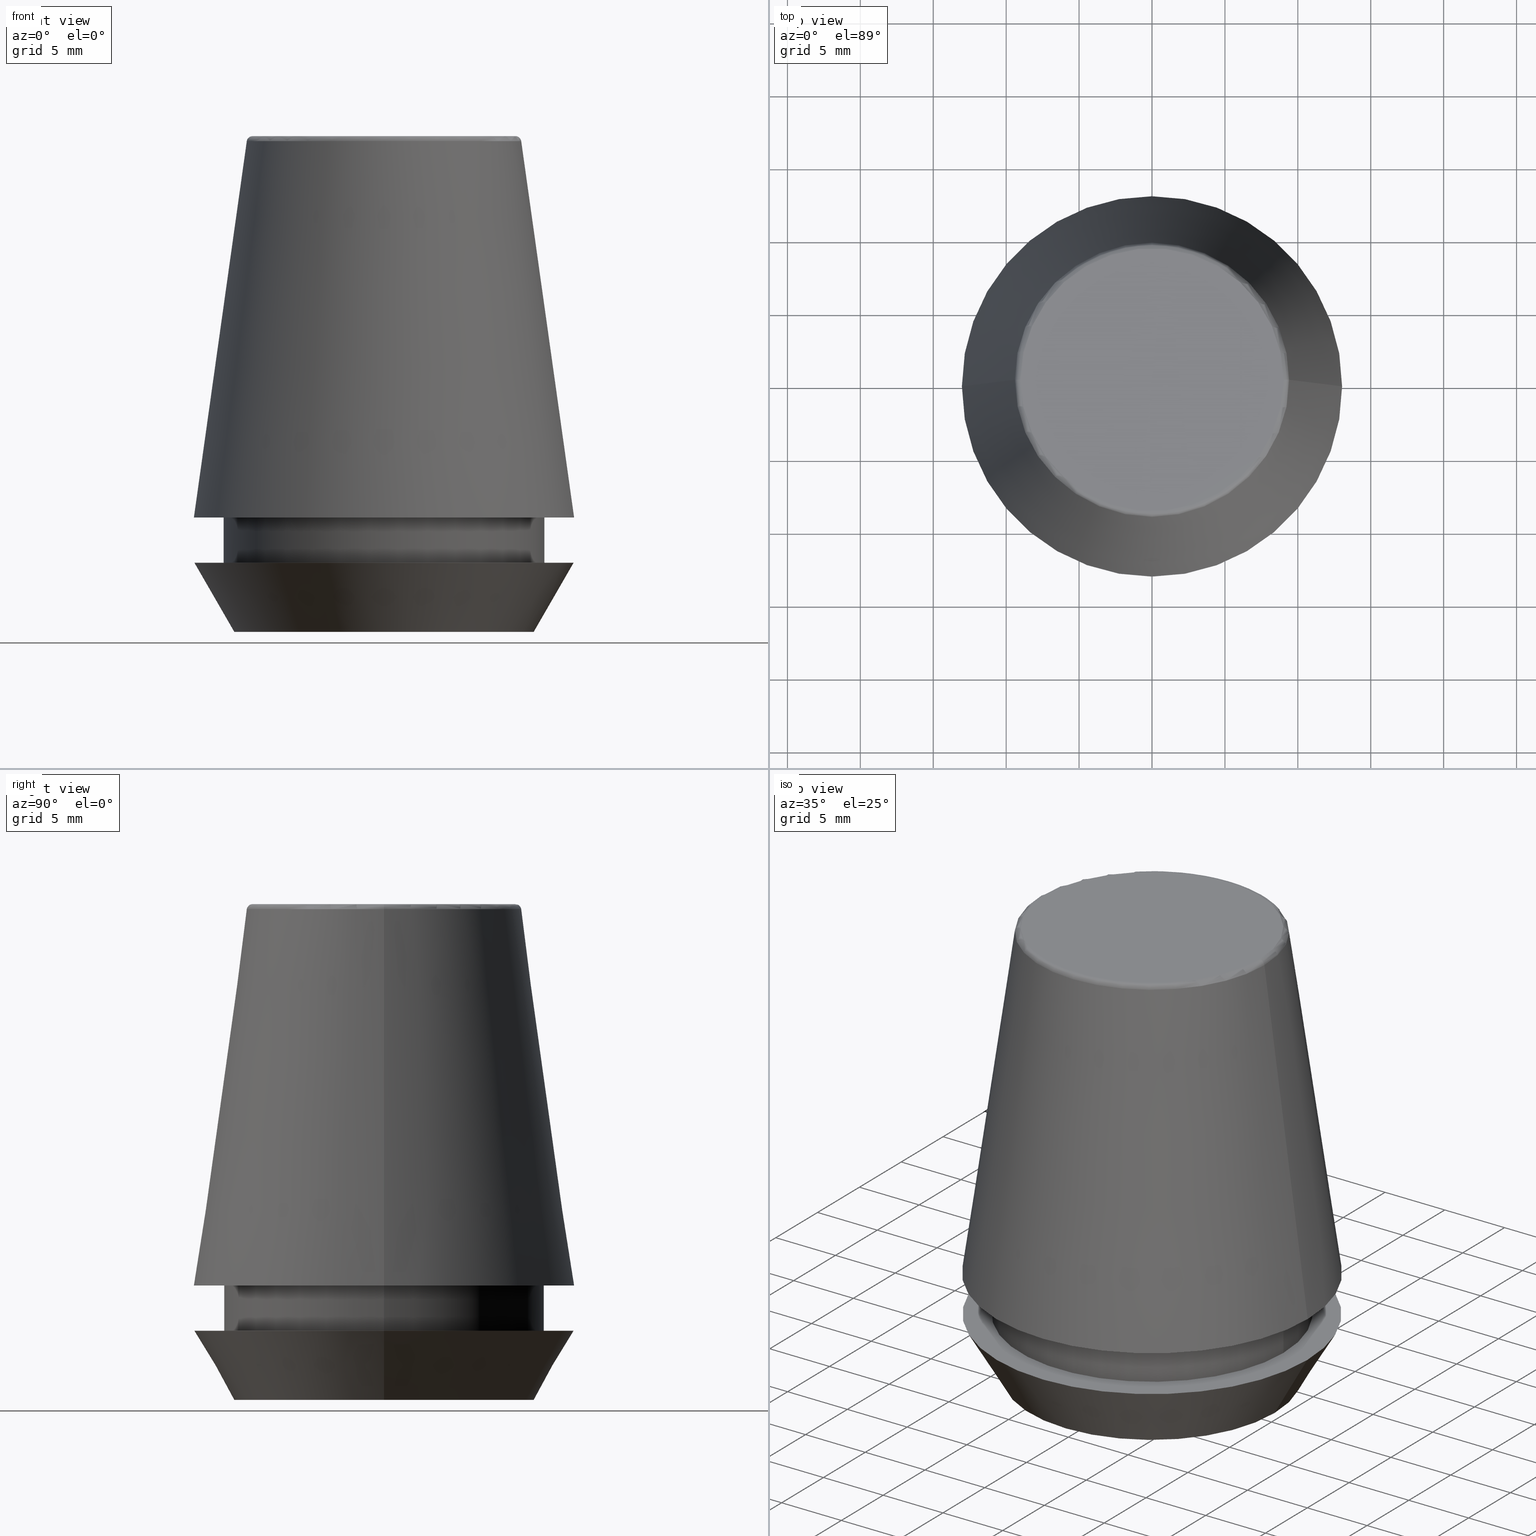
[diagram: canonical four-view strip — front | top / right | iso, engineering-drawing reading convention]
A machine part, canonical four-view strip (front | top / right | iso — engineering-drawing reading convention). The complete STEP part file that produces these views, byte-faithful:
ISO-10303-21;
HEADER;
FILE_DESCRIPTION (( 'STEP AP203' ),
    '1' );
FILE_NAME ('TAP COLLET ER 25G  16.0  X 12.0.STEP',
    '2019-04-09T10:24:27',
    ( '' ),
    ( '' ),
    'SwSTEP 2.0',
    'SolidWorks 2014',
    '' );
FILE_SCHEMA (( 'CONFIG_CONTROL_DESIGN' ));
ENDSEC;

DATA;
#1 = DIRECTION ( 'NONE',  ( 0.0000000000000000000, -0.0000000000000000000, 1.000000000000000000 ) ) ;
#2 = CONICAL_SURFACE ( 'NONE', #323, 10.26217568973925200, 0.5235987755982940400 ) ;
#3 = CC_DESIGN_PERSON_AND_ORGANIZATION_ASSIGNMENT ( #376, #169, ( #78 ) ) ;
#4 = DIRECTION ( 'NONE',  ( 1.000000000000000000, 0.0000000000000000000, 0.0000000000000000000 ) ) ;
#5 = CARTESIAN_POINT ( 'NONE',  ( 0.0000000000000000000, 13.00000000000000000, 4.742050807568884500 ) ) ;
#6 = ORIENTED_EDGE ( 'NONE', *, *, #59, .T. ) ;
#7 = DIRECTION ( 'NONE',  ( -0.0000000000000000000, -0.0000000000000000000, 1.000000000000000000 ) ) ;
#8 = APPROVAL ( #88, 'UNSPECIFIED' ) ;
#9 = CARTESIAN_POINT ( 'NONE',  ( 0.0000000000000000000, 0.0000000000000000000, 33.60000000000000100 ) ) ;
#10 = DIRECTION ( 'NONE',  ( -0.0000000000000000000, -0.0000000000000000000, 1.000000000000000000 ) ) ;
#11 = DIRECTION ( 'NONE',  ( -0.0000000000000000000, -0.0000000000000000000, 1.000000000000000000 ) ) ;
#12 = CLOSED_SHELL ( 'NONE', ( #89, #22, #229, #141, #383, #314, #199, #114, #279, #315, #155, #83 ) ) ;
#13 = VERTEX_POINT ( 'NONE', #373 ) ;
#14 = ORIENTED_EDGE ( 'NONE', *, *, #316, .F. ) ;
#15 = DIRECTION ( 'NONE',  ( 1.000000000000000000, 0.0000000000000000000, 0.0000000000000000000 ) ) ;
#16 = ORIENTED_EDGE ( 'NONE', *, *, #334, .F. ) ;
#17 = ORIENTED_EDGE ( 'NONE', *, *, #288, .T. ) ;
#18 = PERSON_AND_ORGANIZATION_ROLE ( 'design_supplier' ) ;
#19 = FACE_OUTER_BOUND ( 'NONE', #151, .T. ) ;
#20 = DATE_AND_TIME ( #106, #180 ) ;
#21 = DIRECTION ( 'NONE',  ( -0.4999999999999957800, 6.123233995736714300E-017, 0.8660254037844410400 ) ) ;
#22 = ADVANCED_FACE ( 'NONE', ( #19 ), #231, .T. ) ;
#23 = AXIS2_PLACEMENT_3D ( 'NONE', #212, #127, #326 ) ;
#24 = CARTESIAN_POINT ( 'NONE',  ( -11.00000000000000000, 1.347111479062088400E-015, 101.8074564848000400 ) ) ;
#25 = ORGANIZATION ( 'UNSPECIFIED', 'UNSPECIFIED', '' ) ;
#26 = UNCERTAINTY_MEASURE_WITH_UNIT (LENGTH_MEASURE( 1.000000000000000100E-005 ), #273, 'distance_accuracy_value', 'NONE');
#27 = ORIENTED_EDGE ( 'NONE', *, *, #366, .F. ) ;
#28 = ORIENTED_EDGE ( 'NONE', *, *, #64, .T. ) ;
#29 = CIRCLE ( 'NONE', #175, 10.26217568973925200 ) ;
#30 = CC_DESIGN_APPROVAL ( #44, ( #49 ) ) ;
#31 = PLANE ( 'NONE',  #191 ) ;
#32 = PERSON_AND_ORGANIZATION ( #146, #25 ) ;
#33 = AXIS2_PLACEMENT_3D ( 'NONE', #82, #11, #371 ) ;
#34 = DIRECTION ( 'NONE',  ( 1.000000000000000000, 0.0000000000000000000, 0.0000000000000000000 ) ) ;
#35 = FACE_OUTER_BOUND ( 'NONE', #255, .T. ) ;
#36 = DIRECTION ( 'NONE',  ( -1.000000000000000000, 0.0000000000000000000, -0.0000000000000000000 ) ) ;
#37 = CARTESIAN_POINT ( 'NONE',  ( -9.012603057622234500, 1.127980121063915600E-015, 34.00000000000000000 ) ) ;
#38 = DIRECTION ( 'NONE',  ( -0.0000000000000000000, -0.0000000000000000000, 1.000000000000000000 ) ) ;
#39 = EDGE_CURVE ( 'NONE', #247, #370, #96, .T. ) ;
#40 = PERSON_AND_ORGANIZATION ( #146, #25 ) ;
#41 = DIRECTION ( 'NONE',  ( 1.000000000000000000, 0.0000000000000000000, 0.0000000000000000000 ) ) ;
#42 = DIRECTION ( 'NONE',  ( 1.000000000000000000, 0.0000000000000000000, 0.0000000000000000000 ) ) ;
#43 = CONICAL_SURFACE ( 'NONE', #270, 10.26217568973925200, 0.5235987755982940400 ) ;
#44 = APPROVAL ( #341, 'UNSPECIFIED' ) ;
#45 = CARTESIAN_POINT ( 'NONE',  ( 0.0000000000000000000, 0.0000000000000000000, 4.742050807568884500 ) ) ;
#46 = ORIENTED_EDGE ( 'NONE', *, *, #272, .T. ) ;
#47 = CARTESIAN_POINT ( 'NONE',  ( -11.00000000000000000, 1.347111479062088400E-015, 7.842050807568890400 ) ) ;
#48 = MECHANICAL_CONTEXT ( 'NONE', #339, 'mechanical' ) ;
#49 = PRODUCT_DEFINITION_FORMATION_WITH_SPECIFIED_SOURCE ( 'ANY', '', #119, .NOT_KNOWN. ) ;
#50 = PERSON_AND_ORGANIZATION_ROLE ( 'classification_officer' ) ;
#51 = CALENDAR_DATE ( 2019, 9, 4 ) ;
#52 = PRODUCT_RELATED_PRODUCT_CATEGORY ( 'detail', '', ( #119 ) ) ;
#53 = ORIENTED_EDGE ( 'NONE', *, *, #357, .F. ) ;
#54 = CC_DESIGN_DATE_AND_TIME_ASSIGNMENT ( #61, #137, ( #78 ) ) ;
#55 = DIRECTION ( 'NONE',  ( -0.0000000000000000000, -0.0000000000000000000, 1.000000000000000000 ) ) ;
#56 = LINE ( 'NONE', #291, #126 ) ;
#57 = VECTOR ( 'NONE', #21, 1000.000000000000200 ) ;
#58 = ADVANCED_BREP_SHAPE_REPRESENTATION ( 'TAP COLLET ER 25G  16.0  X 12.0', ( #85, #94 ), #232 ) ;
#59 = EDGE_CURVE ( 'NONE', #139, #154, #29, .T. ) ;
#60 = DIRECTION ( 'NONE',  ( 0.4999999999999957800, 0.0000000000000000000, 0.8660254037844410400 ) ) ;
#61 = DATE_AND_TIME ( #138, #213 ) ;
#62 = VERTEX_POINT ( 'NONE', #303 ) ;
#63 = DIRECTION ( 'NONE',  ( 0.0000000000000000000, -0.0000000000000000000, 1.000000000000000000 ) ) ;
#64 = EDGE_CURVE ( 'NONE', #174, #247, #109, .T. ) ;
#65 = DIRECTION ( 'NONE',  ( -0.0000000000000000000, -0.0000000000000000000, 1.000000000000000000 ) ) ;
#66 = CYLINDRICAL_SURFACE ( 'NONE', #156, 11.00000000000000000 ) ;
#67 = VECTOR ( 'NONE', #60, 1000.000000000000200 ) ;
#68 = VERTEX_POINT ( 'NONE', #47 ) ;
#69 = CC_DESIGN_APPROVAL ( #73, ( #78 ) ) ;
#70 = DIRECTION ( 'NONE',  ( -0.0000000000000000000, -0.0000000000000000000, 1.000000000000000000 ) ) ;
#71 = CARTESIAN_POINT ( 'NONE',  ( 0.0000000000000000000, 0.0000000000000000000, 0.0000000000000000000 ) ) ;
#72 = APPROVAL_DATE_TIME ( #145, #73 ) ;
#73 = APPROVAL ( #274, 'UNSPECIFIED' ) ;
#74 = CARTESIAN_POINT ( 'NONE',  ( -10.26217568973925200, 1.424397449982127500E-015, 0.0000000000000000000 ) ) ;
#75 = ORIENTED_EDGE ( 'NONE', *, *, #288, .F. ) ;
#76 = DIRECTION ( 'NONE',  ( -1.000000000000000000, 0.0000000000000000000, -0.0000000000000000000 ) ) ;
#77 = DIRECTION ( 'NONE',  ( 1.000000000000000000, 0.0000000000000000000, 0.0000000000000000000 ) ) ;
#78 = PRODUCT_DEFINITION ( 'UNKNOWN', '', #49, #343 ) ;
#79 = CARTESIAN_POINT ( 'NONE',  ( 0.0000000000000000000, 0.0000000000000000000, 33.65566924038402900 ) ) ;
#80 = LINE ( 'NONE', #24, #142 ) ;
#81 = DIRECTION ( 'NONE',  ( 1.000000000000000000, 0.0000000000000000000, 0.0000000000000000000 ) ) ;
#82 = CARTESIAN_POINT ( 'NONE',  ( 0.0000000000000000000, 0.0000000000000000000, 7.842050807568876200 ) ) ;
#83 = ADVANCED_FACE ( 'NONE', ( #256 ), #364, .F. ) ;
#84 = EDGE_LOOP ( 'NONE', ( #325, #210 ) ) ;
#85 = MANIFOLD_SOLID_BREP ( 'Revolve1', #12 ) ;
#86 = APPLICATION_CONTEXT ( 'configuration controlled 3d designs of mechanical parts and assemblies' ) ;
#87 = ORIENTED_EDGE ( 'NONE', *, *, #296, .F. ) ;
#88 = APPROVAL_STATUS ( 'not_yet_approved' ) ;
#89 = ADVANCED_FACE ( 'NONE', ( #177 ), #97, .T. ) ;
#90 = CIRCLE ( 'NONE', #347, 11.00000000000000000 ) ;
#91 = CC_DESIGN_PERSON_AND_ORGANIZATION_ASSIGNMENT ( #324, #249, ( #119 ) ) ;
#92 = CIRCLE ( 'NONE', #328, 11.00000000000000000 ) ;
#93 = ORIENTED_EDGE ( 'NONE', *, *, #384, .F. ) ;
#94 = AXIS2_PLACEMENT_3D ( 'NONE', #71, #193, #15 ) ;
#95 = CARTESIAN_POINT ( 'NONE',  ( 10.26217568973925200, 0.0000000000000000000, 0.0000000000000000000 ) ) ;
#96 = LINE ( 'NONE', #167, #311 ) ;
#97 = TOROIDAL_SURFACE ( 'NONE', #250, 9.012603057622234500, 0.4000000000000009700 ) ;
#98 = CARTESIAN_POINT ( 'NONE',  ( 0.0000000000000000000, 0.0000000000000000000, 33.65566924038402900 ) ) ;
#99 = CARTESIAN_POINT ( 'NONE',  ( 0.0000000000000000000, 0.0000000000000000000, 4.742050807568884500 ) ) ;
#100 = CIRCLE ( 'NONE', #113, 11.00000000000000000 ) ;
#101 = CARTESIAN_POINT ( 'NONE',  ( -13.00000000000000000, 1.592040838891559100E-015, 4.742050807568884500 ) ) ;
#102 = VERTEX_POINT ( 'NONE', #331 ) ;
#103 = DIRECTION ( 'NONE',  ( 1.000000000000000000, 0.0000000000000000000, 0.0000000000000000000 ) ) ;
#104 = APPROVAL_PERSON_ORGANIZATION ( #246, #73, #110 ) ;
#105 = CARTESIAN_POINT ( 'NONE',  ( 0.0000000000000000000, 9.012603057622234500, 34.00000000000000000 ) ) ;
#106 = CALENDAR_DATE ( 2019, 9, 4 ) ;
#107 =( NAMED_UNIT ( * ) PLANE_ANGLE_UNIT ( ) SI_UNIT ( $, .RADIAN. ) );
#108 = ORIENTED_EDGE ( 'NONE', *, *, #322, .F. ) ;
#109 = CIRCLE ( 'NONE', #217, 11.00000000000000000 ) ;
#110 = APPROVAL_ROLE ( '' ) ;
#111 = DATE_AND_TIME ( #189, #259 ) ;
#112 = CARTESIAN_POINT ( 'NONE',  ( 13.00000000000000000, 0.0000000000000000000, 4.742050807568884500 ) ) ;
#113 = AXIS2_PLACEMENT_3D ( 'NONE', #355, #207, #135 ) ;
#114 = ADVANCED_FACE ( 'NONE', ( #203 ), #66, .T. ) ;
#115 = ORIENTED_EDGE ( 'NONE', *, *, #296, .T. ) ;
#116 = ORIENTED_EDGE ( 'NONE', *, *, #379, .T. ) ;
#117 = DIRECTION ( 'NONE',  ( 0.0000000000000000000, -1.000000000000000000, 0.0000000000000000000 ) ) ;
#118 = CC_DESIGN_PERSON_AND_ORGANIZATION_ASSIGNMENT ( #40, #50, ( #176 ) ) ;
#119 = PRODUCT ( 'TAP COLLET ER 25G  16.0  X 12.0', 'TAP COLLET ER 25G  16.0  X 12.0', '', ( #48 ) ) ;
#120 = CARTESIAN_POINT ( 'NONE',  ( 11.00000000000000000, 0.0000000000000000000, 7.842050807568890400 ) ) ;
#121 = PERSON_AND_ORGANIZATION ( #146, #25 ) ;
#122 = CARTESIAN_POINT ( 'NONE',  ( 0.0000000000000000000, 13.03657776635556700, 7.842050807568883300 ) ) ;
#123 = FACE_OUTER_BOUND ( 'NONE', #240, .T. ) ;
#124 = VERTEX_POINT ( 'NONE', #241 ) ;
#125 = PLANE ( 'NONE',  #129 ) ;
#126 = VECTOR ( 'NONE', #149, 1000.000000000000000 ) ;
#127 = DIRECTION ( 'NONE',  ( -0.0000000000000000000, -0.0000000000000000000, 1.000000000000000000 ) ) ;
#128 = CARTESIAN_POINT ( 'NONE',  ( -11.00000000000000000, 1.347111479062088400E-015, 4.742050807568884500 ) ) ;
#129 = AXIS2_PLACEMENT_3D ( 'NONE', #122, #63, #258 ) ;
#130 = LOCAL_TIME ( 15, 54, 27.00000000000000000, #202 ) ;
#131 = CARTESIAN_POINT ( 'NONE',  ( 0.0000000000000000000, 0.0000000000000000000, 101.8074564848000400 ) ) ;
#132 = ORIENTED_EDGE ( 'NONE', *, *, #310, .F. ) ;
#133 = CC_DESIGN_APPROVAL ( #8, ( #176 ) ) ;
#134 = DIRECTION ( 'NONE',  ( -1.000000000000000000, 0.0000000000000000000, 0.0000000000000000000 ) ) ;
#135 = DIRECTION ( 'NONE',  ( 1.000000000000000000, 0.0000000000000000000, 0.0000000000000000000 ) ) ;
#136 = CC_DESIGN_DATE_AND_TIME_ASSIGNMENT ( #111, #251, ( #176 ) ) ;
#137 = DATE_TIME_ROLE ( 'creation_date' ) ;
#138 = CALENDAR_DATE ( 2019, 9, 4 ) ;
#139 = VERTEX_POINT ( 'NONE', #74 ) ;
#140 = CARTESIAN_POINT ( 'NONE',  ( -9.012603057622234500, 1.103725548650271700E-015, 33.60000000000000100 ) ) ;
#141 = ADVANCED_FACE ( 'NONE', ( #363 ), #43, .T. ) ;
#142 = VECTOR ( 'NONE', #162, 1000.000000000000000 ) ;
#143 = DIRECTION ( 'NONE',  ( -1.000000000000000000, 1.224646799147353200E-016, 0.0000000000000000000 ) ) ;
#144 = EDGE_LOOP ( 'NONE', ( #297, #228, #214, #172 ) ) ;
#145 = DATE_AND_TIME ( #223, #298 ) ;
#146 = PERSON ( 'UNSPECIFIED', 'UNSPECIFIED', 'UNSPECIFIED', ('UNSPECIFIED'), ('UNSPECIFIED'), ('UNSPECIFIED') ) ;
#147 = EDGE_LOOP ( 'NONE', ( #53, #28, #309, #375 ) ) ;
#148 = DIRECTION ( 'NONE',  ( -0.1391731009600587800, 0.0000000000000000000, -0.9902680687415712500 ) ) ;
#149 = DIRECTION ( 'NONE',  ( 0.1391731009600587800, 1.704378926181474000E-017, -0.9902680687415712500 ) ) ;
#150 = CIRCLE ( 'NONE', #368, 0.3999999999999975800 ) ;
#151 = EDGE_LOOP ( 'NONE', ( #220, #17, #46, #27 ) ) ;
#152 = DIRECTION ( 'NONE',  ( 1.000000000000000000, 0.0000000000000000000, 0.0000000000000000000 ) ) ;
#153 = CARTESIAN_POINT ( 'NONE',  ( 0.0000000000000000000, 0.0000000000000000000, 34.00000000000000000 ) ) ;
#154 = VERTEX_POINT ( 'NONE', #187 ) ;
#155 = ADVANCED_FACE ( 'NONE', ( #181 ), #244, .T. ) ;
#156 = AXIS2_PLACEMENT_3D ( 'NONE', #131, #7, #103 ) ;
#157 = CC_DESIGN_SECURITY_CLASSIFICATION ( #176, ( #49 ) ) ;
#158 = ORIENTED_EDGE ( 'NONE', *, *, #348, .T. ) ;
#159 = AXIS2_PLACEMENT_3D ( 'NONE', #233, #320, #353 ) ;
#160 = CIRCLE ( 'NONE', #312, 13.00000000000000000 ) ;
#161 = CARTESIAN_POINT ( 'NONE',  ( -13.03657776635556700, 0.0000000000000000000, 7.842050807568876200 ) ) ;
#162 = DIRECTION ( 'NONE',  ( -0.0000000000000000000, -0.0000000000000000000, 1.000000000000000000 ) ) ;
#163 = CARTESIAN_POINT ( 'NONE',  ( 0.0000000000000000000, 0.0000000000000000000, 0.0000000000000000000 ) ) ;
#164 = CIRCLE ( 'NONE', #33, 13.03657776635556700 ) ;
#165 = AXIS2_PLACEMENT_3D ( 'NONE', #369, #335, #134 ) ;
#166 = ORIENTED_EDGE ( 'NONE', *, *, #39, .F. ) ;
#167 = CARTESIAN_POINT ( 'NONE',  ( 11.00000000000000000, 0.0000000000000000000, 101.8074564848000400 ) ) ;
#168 = ORIENTED_EDGE ( 'NONE', *, *, #330, .T. ) ;
#169 = PERSON_AND_ORGANIZATION_ROLE ( 'creator' ) ;
#170 = DIRECTION ( 'NONE',  ( 0.0000000000000000000, 0.0000000000000000000, -1.000000000000000000 ) ) ;
#171 = CARTESIAN_POINT ( 'NONE',  ( -10.26217568973925200, 1.256754061072695800E-015, 0.0000000000000000000 ) ) ;
#172 = ORIENTED_EDGE ( 'NONE', *, *, #348, .F. ) ;
#173 = VERTEX_POINT ( 'NONE', #37 ) ;
#174 = VERTEX_POINT ( 'NONE', #128 ) ;
#175 = AXIS2_PLACEMENT_3D ( 'NONE', #163, #243, #190 ) ;
#176 = SECURITY_CLASSIFICATION ( '', '', #224 ) ;
#177 = FACE_OUTER_BOUND ( 'NONE', #365, .T. ) ;
#178 = DIRECTION ( 'NONE',  ( -0.0000000000000000000, -0.0000000000000000000, 1.000000000000000000 ) ) ;
#179 = CIRCLE ( 'NONE', #263, 13.00000000000000000 ) ;
#180 = LOCAL_TIME ( 15, 54, 27.00000000000000000, #252 ) ;
#181 = FACE_OUTER_BOUND ( 'NONE', #144, .T. ) ;
#182 = CARTESIAN_POINT ( 'NONE',  ( 0.0000000000000000000, 0.0000000000000000000, 4.742050807568884500 ) ) ;
#183 = EDGE_CURVE ( 'NONE', #13, #173, #351, .T. ) ;
#184 = DIRECTION ( 'NONE',  ( -0.0000000000000000000, -0.0000000000000000000, 1.000000000000000000 ) ) ;
#185 = ORIENTED_EDGE ( 'NONE', *, *, #183, .F. ) ;
#186 = ORIENTED_EDGE ( 'NONE', *, *, #366, .T. ) ;
#187 = CARTESIAN_POINT ( 'NONE',  ( 10.26217568973925200, 0.0000000000000000000, 0.0000000000000000000 ) ) ;
#188 = DIRECTION ( 'NONE',  ( 0.0000000000000000000, 0.0000000000000000000, -1.000000000000000000 ) ) ;
#189 = CALENDAR_DATE ( 2019, 9, 4 ) ;
#190 = DIRECTION ( 'NONE',  ( 1.000000000000000000, 0.0000000000000000000, 0.0000000000000000000 ) ) ;
#191 = AXIS2_PLACEMENT_3D ( 'NONE', #218, #1, #257 ) ;
#192 = FACE_OUTER_BOUND ( 'NONE', #84, .T. ) ;
#193 = DIRECTION ( 'NONE',  ( 0.0000000000000000000, 0.0000000000000000000, 1.000000000000000000 ) ) ;
#194 = PERSON_AND_ORGANIZATION_ROLE ( 'creator' ) ;
#195 = ORIENTED_EDGE ( 'NONE', *, *, #317, .T. ) ;
#196 = PERSON_AND_ORGANIZATION ( #146, #25 ) ;
#197 = DIRECTION ( 'NONE',  ( -1.000000000000000000, 0.0000000000000000000, 0.0000000000000000000 ) ) ;
#198 = FACE_BOUND ( 'NONE', #378, .T. ) ;
#199 = ADVANCED_FACE ( 'NONE', ( #276, #192 ), #211, .F. ) ;
#200 = SHAPE_DEFINITION_REPRESENTATION ( #372, #58 ) ;
#201 = CARTESIAN_POINT ( 'NONE',  ( 0.0000000000000000000, 0.0000000000000000000, 7.842050807568876200 ) ) ;
#202 = COORDINATED_UNIVERSAL_TIME_OFFSET ( 5, 30, .AHEAD. ) ;
#203 = FACE_OUTER_BOUND ( 'NONE', #147, .T. ) ;
#204 = EDGE_LOOP ( 'NONE', ( #327, #290 ) ) ;
#205 = DIRECTION ( 'NONE',  ( -0.0000000000000000000, -0.0000000000000000000, 1.000000000000000000 ) ) ;
#206 = AXIS2_PLACEMENT_3D ( 'NONE', #79, #10, #81 ) ;
#207 = DIRECTION ( 'NONE',  ( -0.0000000000000000000, -0.0000000000000000000, 1.000000000000000000 ) ) ;
#208 = EDGE_LOOP ( 'NONE', ( #93, #6, #116, #132 ) ) ;
#209 = CARTESIAN_POINT ( 'NONE',  ( 0.0000000000000000000, 0.0000000000000000000, 0.0000000000000000000 ) ) ;
#210 = ORIENTED_EDGE ( 'NONE', *, *, #310, .T. ) ;
#211 = PLANE ( 'NONE',  #352 ) ;
#212 = CARTESIAN_POINT ( 'NONE',  ( 0.0000000000000000000, 0.0000000000000000000, 33.60000000000000100 ) ) ;
#213 = LOCAL_TIME ( 15, 54, 27.00000000000000000, #287 ) ;
#214 = ORIENTED_EDGE ( 'NONE', *, *, #334, .T. ) ;
#215 = DIRECTION ( 'NONE',  ( 1.000000000000000000, 0.0000000000000000000, 0.0000000000000000000 ) ) ;
#216 = LINE ( 'NONE', #161, #281 ) ;
#217 = AXIS2_PLACEMENT_3D ( 'NONE', #242, #301, #41 ) ;
#218 = CARTESIAN_POINT ( 'NONE',  ( 0.0000000000000000000, 0.0000000000000000000, 0.0000000000000000000 ) ) ;
#219 = CARTESIAN_POINT ( 'NONE',  ( -13.03657776635556700, 0.0000000000000000000, 7.842050807568876200 ) ) ;
#220 = ORIENTED_EDGE ( 'NONE', *, *, #337, .F. ) ;
#221 = APPLICATION_PROTOCOL_DEFINITION ( 'international standard', 'config_control_design', 1994, #339 ) ;
#222 = VERTEX_POINT ( 'NONE', #101 ) ;
#223 = CALENDAR_DATE ( 2019, 9, 4 ) ;
#224 = SECURITY_CLASSIFICATION_LEVEL ( 'unclassified' ) ;
#225 = ORIENTED_EDGE ( 'NONE', *, *, #361, .F. ) ;
#226 = AXIS2_PLACEMENT_3D ( 'NONE', #153, #360, #238 ) ;
#227 = CONICAL_SURFACE ( 'NONE', #332, 13.03657776635556700, 0.1396263401595396500 ) ;
#228 = ORIENTED_EDGE ( 'NONE', *, *, #316, .T. ) ;
#229 = ADVANCED_FACE ( 'NONE', ( #123 ), #254, .T. ) ;
#230 = EDGE_LOOP ( 'NONE', ( #374, #286, #336, #318 ) ) ;
#231 = CONICAL_SURFACE ( 'NONE', #165, 13.03657776635556700, 0.1396263401595396500 ) ;
#232 =( GEOMETRIC_REPRESENTATION_CONTEXT ( 3 ) GLOBAL_UNCERTAINTY_ASSIGNED_CONTEXT ( ( #26 ) ) GLOBAL_UNIT_ASSIGNED_CONTEXT ( ( #273, #107, #307 ) ) REPRESENTATION_CONTEXT ( 'NONE', 'WORKASPACE' ) );
#233 = CARTESIAN_POINT ( 'NONE',  ( 0.0000000000000000000, 0.0000000000000000000, 7.842050807568876200 ) ) ;
#234 = CIRCLE ( 'NONE', #380, 0.4000000000000010200 ) ;
#235 = DIRECTION ( 'NONE',  ( 1.000000000000000000, 0.0000000000000000000, 0.0000000000000000000 ) ) ;
#236 = CARTESIAN_POINT ( 'NONE',  ( 0.0000000000000000000, 0.0000000000000000000, 101.8074564848000400 ) ) ;
#237 = ORIENTED_EDGE ( 'NONE', *, *, #302, .T. ) ;
#238 = DIRECTION ( 'NONE',  ( 1.000000000000000000, 0.0000000000000000000, 0.0000000000000000000 ) ) ;
#239 = DIRECTION ( 'NONE',  ( -0.0000000000000000000, -0.0000000000000000000, 1.000000000000000000 ) ) ;
#240 = EDGE_LOOP ( 'NONE', ( #195, #299, #87, #166 ) ) ;
#241 = CARTESIAN_POINT ( 'NONE',  ( 9.408710285118862900, 1.374377508408924700E-015, 33.65566924038402900 ) ) ;
#242 = CARTESIAN_POINT ( 'NONE',  ( 0.0000000000000000000, 0.0000000000000000000, 4.742050807568884500 ) ) ;
#243 = DIRECTION ( 'NONE',  ( -0.0000000000000000000, -0.0000000000000000000, 1.000000000000000000 ) ) ;
#244 = TOROIDAL_SURFACE ( 'NONE', #23, 9.012603057622234500, 0.4000000000000009700 ) ;
#245 = AXIS2_PLACEMENT_3D ( 'NONE', #236, #184, #4 ) ;
#246 = PERSON_AND_ORGANIZATION ( #146, #25 ) ;
#247 = VERTEX_POINT ( 'NONE', #358 ) ;
#248 = FACE_OUTER_BOUND ( 'NONE', #271, .T. ) ;
#249 = PERSON_AND_ORGANIZATION_ROLE ( 'design_owner' ) ;
#250 = AXIS2_PLACEMENT_3D ( 'NONE', #9, #300, #42 ) ;
#251 = DATE_TIME_ROLE ( 'classification_date' ) ;
#252 = COORDINATED_UNIVERSAL_TIME_OFFSET ( 5, 30, .AHEAD. ) ;
#253 = DIRECTION ( 'NONE',  ( 1.224646799147353200E-016, 1.000000000000000000, 0.0000000000000000000 ) ) ;
#254 = CYLINDRICAL_SURFACE ( 'NONE', #245, 11.00000000000000000 ) ;
#255 = EDGE_LOOP ( 'NONE', ( #108, #306 ) ) ;
#256 = FACE_OUTER_BOUND ( 'NONE', #345, .T. ) ;
#257 = DIRECTION ( 'NONE',  ( 1.000000000000000000, 0.0000000000000000000, 0.0000000000000000000 ) ) ;
#258 = DIRECTION ( 'NONE',  ( 1.000000000000000000, 0.0000000000000000000, 0.0000000000000000000 ) ) ;
#259 = LOCAL_TIME ( 15, 54, 27.00000000000000000, #342 ) ;
#260 = AXIS2_PLACEMENT_3D ( 'NONE', #386, #205, #235 ) ;
#261 = DIRECTION ( 'NONE',  ( 1.000000000000000000, 0.0000000000000000000, 0.0000000000000000000 ) ) ;
#262 = AXIS2_PLACEMENT_3D ( 'NONE', #105, #188, #76 ) ;
#263 = AXIS2_PLACEMENT_3D ( 'NONE', #99, #65, #34 ) ;
#264 = DIRECTION ( 'NONE',  ( 1.000000000000000000, 0.0000000000000000000, 0.0000000000000000000 ) ) ;
#265 = DIRECTION ( 'NONE',  ( 0.0000000000000000000, 0.0000000000000000000, -1.000000000000000000 ) ) ;
#266 = APPROVAL_DATE_TIME ( #350, #44 ) ;
#267 = DIRECTION ( 'NONE',  ( -0.0000000000000000000, -0.0000000000000000000, 1.000000000000000000 ) ) ;
#268 = CIRCLE ( 'NONE', #159, 13.03657776635556700 ) ;
#269 = LINE ( 'NONE', #171, #57 ) ;
#270 = AXIS2_PLACEMENT_3D ( 'NONE', #329, #38, #264 ) ;
#271 = EDGE_LOOP ( 'NONE', ( #75, #14, #186, #346 ) ) ;
#272 = EDGE_CURVE ( 'NONE', #62, #340, #268, .T. ) ;
#273 =( LENGTH_UNIT ( ) NAMED_UNIT ( * ) SI_UNIT ( .MILLI., .METRE. ) );
#274 = APPROVAL_STATUS ( 'not_yet_approved' ) ;
#275 = APPROVAL_PERSON_ORGANIZATION ( #362, #44, #377 ) ;
#276 = FACE_BOUND ( 'NONE', #204, .T. ) ;
#277 = APPROVAL_ROLE ( '' ) ;
#278 = EDGE_LOOP ( 'NONE', ( #225, #359 ) ) ;
#279 = ADVANCED_FACE ( 'NONE', ( #35, #198 ), #125, .F. ) ;
#280 = AXIS2_PLACEMENT_3D ( 'NONE', #319, #178, #349 ) ;
#281 = VECTOR ( 'NONE', #148, 1000.000000000000000 ) ;
#282 = ORIENTED_EDGE ( 'NONE', *, *, #337, .T. ) ;
#283 = FACE_OUTER_BOUND ( 'NONE', #208, .T. ) ;
#284 = AXIS2_PLACEMENT_3D ( 'NONE', #98, #354, #152 ) ;
#285 = CARTESIAN_POINT ( 'NONE',  ( 9.012603057622234500, 0.0000000000000000000, 33.60000000000000100 ) ) ;
#286 = ORIENTED_EDGE ( 'NONE', *, *, #384, .T. ) ;
#287 = COORDINATED_UNIVERSAL_TIME_OFFSET ( 5, 30, .AHEAD. ) ;
#288 = EDGE_CURVE ( 'NONE', #124, #62, #56, .T. ) ;
#289 = CC_DESIGN_PERSON_AND_ORGANIZATION_ASSIGNMENT ( #121, #18, ( #49 ) ) ;
#290 = ORIENTED_EDGE ( 'NONE', *, *, #64, .F. ) ;
#291 = CARTESIAN_POINT ( 'NONE',  ( 13.03657776635556700, 1.596520323340289600E-015, 7.842050807568876200 ) ) ;
#292 = CIRCLE ( 'NONE', #260, 10.26217568973925200 ) ;
#293 = DIRECTION ( 'NONE',  ( 1.000000000000000000, 0.0000000000000000000, 0.0000000000000000000 ) ) ;
#294 = EDGE_CURVE ( 'NONE', #387, #222, #179, .T. ) ;
#295 = DIRECTION ( 'NONE',  ( 0.0000000000000000000, 0.0000000000000000000, -1.000000000000000000 ) ) ;
#296 = EDGE_CURVE ( 'NONE', #370, #68, #100, .T. ) ;
#297 = ORIENTED_EDGE ( 'NONE', *, *, #330, .F. ) ;
#298 = LOCAL_TIME ( 15, 54, 27.00000000000000000, #385 ) ;
#299 = ORIENTED_EDGE ( 'NONE', *, *, #357, .T. ) ;
#300 = DIRECTION ( 'NONE',  ( -0.0000000000000000000, -0.0000000000000000000, 1.000000000000000000 ) ) ;
#301 = DIRECTION ( 'NONE',  ( -0.0000000000000000000, -0.0000000000000000000, 1.000000000000000000 ) ) ;
#302 = EDGE_CURVE ( 'NONE', #68, #370, #92, .T. ) ;
#303 = CARTESIAN_POINT ( 'NONE',  ( 13.03657776635556700, 1.596520323340289600E-015, 7.842050807568876200 ) ) ;
#304 = CIRCLE ( 'NONE', #206, 9.408710285118862900 ) ;
#305 = CC_DESIGN_PERSON_AND_ORGANIZATION_ASSIGNMENT ( #196, #194, ( #49 ) ) ;
#306 = ORIENTED_EDGE ( 'NONE', *, *, #272, .F. ) ;
#307 =( NAMED_UNIT ( * ) SI_UNIT ( $, .STERADIAN. ) SOLID_ANGLE_UNIT ( ) );
#308 = APPLICATION_PROTOCOL_DEFINITION ( 'international standard', 'config_control_design', 1994, #86 ) ;
#309 = ORIENTED_EDGE ( 'NONE', *, *, #39, .T. ) ;
#310 = EDGE_CURVE ( 'NONE', #222, #387, #160, .T. ) ;
#311 = VECTOR ( 'NONE', #267, 1000.000000000000000 ) ;
#312 = AXIS2_PLACEMENT_3D ( 'NONE', #182, #239, #215 ) ;
#313 = CIRCLE ( 'NONE', #284, 9.408710285118862900 ) ;
#314 = ADVANCED_FACE ( 'NONE', ( #283 ), #2, .T. ) ;
#315 = ADVANCED_FACE ( 'NONE', ( #248 ), #227, .T. ) ;
#316 = EDGE_CURVE ( 'NONE', #102, #124, #304, .T. ) ;
#317 = EDGE_CURVE ( 'NONE', #247, #174, #90, .T. ) ;
#318 = ORIENTED_EDGE ( 'NONE', *, *, #379, .F. ) ;
#319 = CARTESIAN_POINT ( 'NONE',  ( 0.0000000000000000000, 0.0000000000000000000, 34.00000000000000000 ) ) ;
#320 = DIRECTION ( 'NONE',  ( -0.0000000000000000000, -0.0000000000000000000, 1.000000000000000000 ) ) ;
#321 = APPROVAL_DATE_TIME ( #20, #8 ) ;
#322 = EDGE_CURVE ( 'NONE', #340, #62, #164, .T. ) ;
#323 = AXIS2_PLACEMENT_3D ( 'NONE', #209, #70, #293 ) ;
#324 = PERSON_AND_ORGANIZATION ( #146, #25 ) ;
#325 = ORIENTED_EDGE ( 'NONE', *, *, #294, .T. ) ;
#326 = DIRECTION ( 'NONE',  ( 1.000000000000000000, 0.0000000000000000000, 0.0000000000000000000 ) ) ;
#327 = ORIENTED_EDGE ( 'NONE', *, *, #317, .F. ) ;
#328 = AXIS2_PLACEMENT_3D ( 'NONE', #344, #381, #261 ) ;
#329 = CARTESIAN_POINT ( 'NONE',  ( 0.0000000000000000000, 0.0000000000000000000, 0.0000000000000000000 ) ) ;
#330 = EDGE_CURVE ( 'NONE', #102, #173, #234, .T. ) ;
#331 = CARTESIAN_POINT ( 'NONE',  ( -9.408710285118862900, 0.0000000000000000000, 33.65566924038402900 ) ) ;
#332 = AXIS2_PLACEMENT_3D ( 'NONE', #201, #265, #197 ) ;
#333 = APPROVAL_PERSON_ORGANIZATION ( #32, #8, #277 ) ;
#334 = EDGE_CURVE ( 'NONE', #124, #13, #150, .T. ) ;
#335 = DIRECTION ( 'NONE',  ( 0.0000000000000000000, 0.0000000000000000000, -1.000000000000000000 ) ) ;
#336 = ORIENTED_EDGE ( 'NONE', *, *, #294, .F. ) ;
#337 = EDGE_CURVE ( 'NONE', #124, #102, #313, .T. ) ;
#338 = ORIENTED_EDGE ( 'NONE', *, *, #183, .T. ) ;
#339 = APPLICATION_CONTEXT ( 'configuration controlled 3d designs of mechanical parts and assemblies' ) ;
#340 = VERTEX_POINT ( 'NONE', #219 ) ;
#341 = APPROVAL_STATUS ( 'not_yet_approved' ) ;
#342 = COORDINATED_UNIVERSAL_TIME_OFFSET ( 5, 30, .AHEAD. ) ;
#343 = DESIGN_CONTEXT ( 'detailed design', #86, 'design' ) ;
#344 = CARTESIAN_POINT ( 'NONE',  ( 0.0000000000000000000, 0.0000000000000000000, 7.842050807568890400 ) ) ;
#345 = EDGE_LOOP ( 'NONE', ( #338, #158 ) ) ;
#346 = ORIENTED_EDGE ( 'NONE', *, *, #322, .T. ) ;
#347 = AXIS2_PLACEMENT_3D ( 'NONE', #45, #55, #77 ) ;
#348 = EDGE_CURVE ( 'NONE', #173, #13, #382, .T. ) ;
#349 = DIRECTION ( 'NONE',  ( 1.000000000000000000, 0.0000000000000000000, 0.0000000000000000000 ) ) ;
#350 = DATE_AND_TIME ( #51, #130 ) ;
#351 = CIRCLE ( 'NONE', #226, 9.012603057622234500 ) ;
#352 = AXIS2_PLACEMENT_3D ( 'NONE', #5, #295, #36 ) ;
#353 = DIRECTION ( 'NONE',  ( 1.000000000000000000, 0.0000000000000000000, 0.0000000000000000000 ) ) ;
#354 = DIRECTION ( 'NONE',  ( -0.0000000000000000000, -0.0000000000000000000, 1.000000000000000000 ) ) ;
#355 = CARTESIAN_POINT ( 'NONE',  ( 0.0000000000000000000, 0.0000000000000000000, 7.842050807568890400 ) ) ;
#356 = FACE_OUTER_BOUND ( 'NONE', #278, .T. ) ;
#357 = EDGE_CURVE ( 'NONE', #174, #68, #80, .T. ) ;
#358 = CARTESIAN_POINT ( 'NONE',  ( 11.00000000000000000, 0.0000000000000000000, 4.742050807568884500 ) ) ;
#359 = ORIENTED_EDGE ( 'NONE', *, *, #59, .F. ) ;
#360 = DIRECTION ( 'NONE',  ( -0.0000000000000000000, -0.0000000000000000000, 1.000000000000000000 ) ) ;
#361 = EDGE_CURVE ( 'NONE', #154, #139, #292, .T. ) ;
#362 = PERSON_AND_ORGANIZATION ( #146, #25 ) ;
#363 = FACE_OUTER_BOUND ( 'NONE', #230, .T. ) ;
#364 = PLANE ( 'NONE',  #262 ) ;
#365 = EDGE_LOOP ( 'NONE', ( #282, #168, #185, #16 ) ) ;
#366 = EDGE_CURVE ( 'NONE', #102, #340, #216, .T. ) ;
#367 = LINE ( 'NONE', #95, #67 ) ;
#368 = AXIS2_PLACEMENT_3D ( 'NONE', #285, #117, #170 ) ;
#369 = CARTESIAN_POINT ( 'NONE',  ( 0.0000000000000000000, 0.0000000000000000000, 7.842050807568876200 ) ) ;
#370 = VERTEX_POINT ( 'NONE', #120 ) ;
#371 = DIRECTION ( 'NONE',  ( 1.000000000000000000, 0.0000000000000000000, 0.0000000000000000000 ) ) ;
#372 = PRODUCT_DEFINITION_SHAPE ( 'NONE', 'NONE',  #78 ) ;
#373 = CARTESIAN_POINT ( 'NONE',  ( 9.012603057622234500, 0.0000000000000000000, 34.00000000000000000 ) ) ;
#374 = ORIENTED_EDGE ( 'NONE', *, *, #361, .T. ) ;
#375 = ORIENTED_EDGE ( 'NONE', *, *, #302, .F. ) ;
#376 = PERSON_AND_ORGANIZATION ( #146, #25 ) ;
#377 = APPROVAL_ROLE ( '' ) ;
#378 = EDGE_LOOP ( 'NONE', ( #115, #237 ) ) ;
#379 = EDGE_CURVE ( 'NONE', #154, #387, #367, .T. ) ;
#380 = AXIS2_PLACEMENT_3D ( 'NONE', #140, #253, #143 ) ;
#381 = DIRECTION ( 'NONE',  ( -0.0000000000000000000, -0.0000000000000000000, 1.000000000000000000 ) ) ;
#382 = CIRCLE ( 'NONE', #280, 9.012603057622234500 ) ;
#383 = ADVANCED_FACE ( 'NONE', ( #356 ), #31, .F. ) ;
#384 = EDGE_CURVE ( 'NONE', #139, #222, #269, .T. ) ;
#385 = COORDINATED_UNIVERSAL_TIME_OFFSET ( 5, 30, .AHEAD. ) ;
#386 = CARTESIAN_POINT ( 'NONE',  ( 0.0000000000000000000, 0.0000000000000000000, 0.0000000000000000000 ) ) ;
#387 = VERTEX_POINT ( 'NONE', #112 ) ;
ENDSEC;
END-ISO-10303-21;
